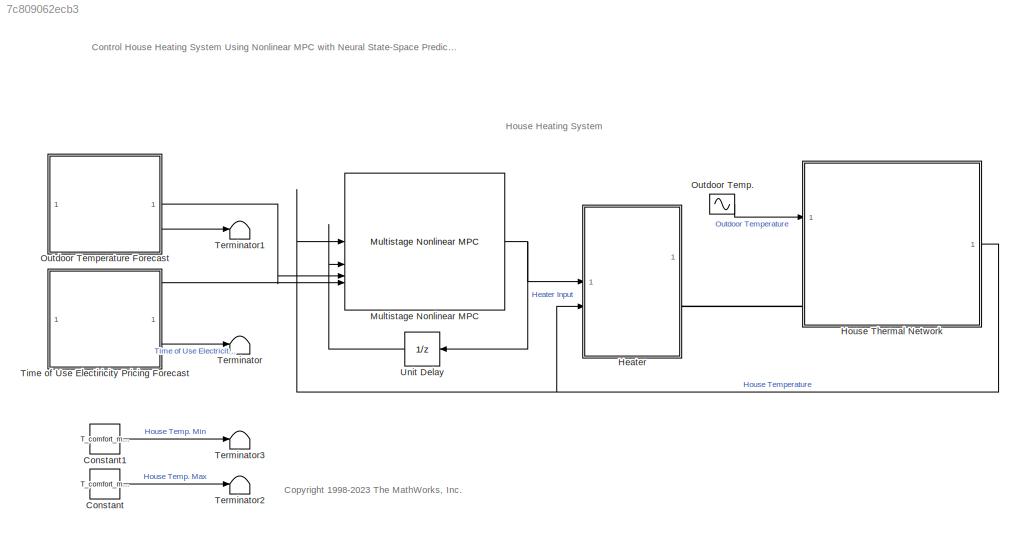
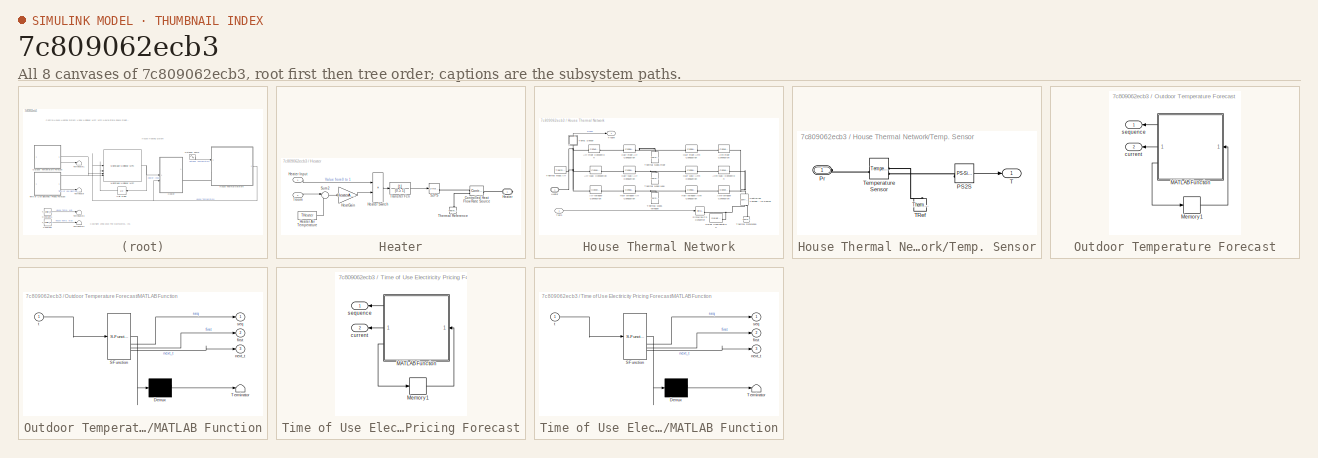
[diagram: thumbnail index - all 8 canvases of the model, root first then tree order]
MODEL slx_7c809062ecb3
KIND model
CONFIG AbsTol = 1e-3
CONFIG EnableMultiTasking = off
CONFIG FixedStep = 500
CONFIG InitFcn = %   Simscape Demo "House Heating System"\nmax_temp = 23;    % Maximum temperature\nmin_temp = 18;     % Minimum temperature\n% Walls\n% House length = 30 m\nlenHouse = 30;\n% House width = 10 m\nwidHouse = 10;\n% House height = 4 m\nhtHouse = 4;\nwallArea = 2*lenHouse*htHouse + 2*widHouse*htHouse;\nLWall = .2;\nwallVolume = wallArea * LWall;\nwallDensity = 1920;     % kg/m^3\nwallMass = wallVolume * wallDensity...<+1997ch>
CONFIG MaxStep = 50
CONFIG MinStep = auto
CONFIG RelTol = 1e-3
CONFIG SampleTimeConstraint = Unconstrained
CONFIG SolverName = VariableStepAuto
CONFIG StartTime = 0.0
CONFIG StopTime = 3600*24
BLOCK [Constant] Constant
  Value = T_comfort_min
BLOCK [Constant] Constant1
  Value = T_comfort_max
BLOCK [SubSystem] Heater
BLOCK [Reference] Heater/Controlled Heat Flow Rate Source  REF=fl_lib/Thermal/Thermal Sources/Controlled Heat Flow
Rate Source
  SourceBlock = fl_lib/Thermal/Thermal Sources/Controlled Heat Flow\nRate Source
  SourceType = Controlled Heat Flow\nRate Source
BLOCK [Gain] Heater/HeatGain
  Gain = HeaterAirFlow * c_air
BLOCK [PMIOPort] Heater/Heater
  Side = Right
  Tag = PMCPort
BLOCK [Constant] Heater/Heater Air Temperature
  Value = THeater
BLOCK [Inport] Heater/Heater Input
BLOCK [Product] Heater/Heater Switch
  RndMeth = Zero
BLOCK [Reference] Heater/S2PS  REF=nesl_utility/Simulink-PS
Converter
  SourceBlock = nesl_utility/Simulink-PS\nConverter
  SourceType = Simulink-PS\nConverter
BLOCK [Sum] Heater/Sum2
  Inputs = |-+
BLOCK [Reference] Heater/Thermal Reference  REF=fl_lib/Thermal/Thermal Elements/Thermal Reference
  NameLocation = right
  SourceBlock = fl_lib/Thermal/Thermal Elements/Thermal Reference
  SourceType = Thermal Reference
BLOCK [TransferFcn] Heater/Transfer Fcn
  Denominator = [0.5 1]
BLOCK [Inport] Heater/Troom
  Port = 2
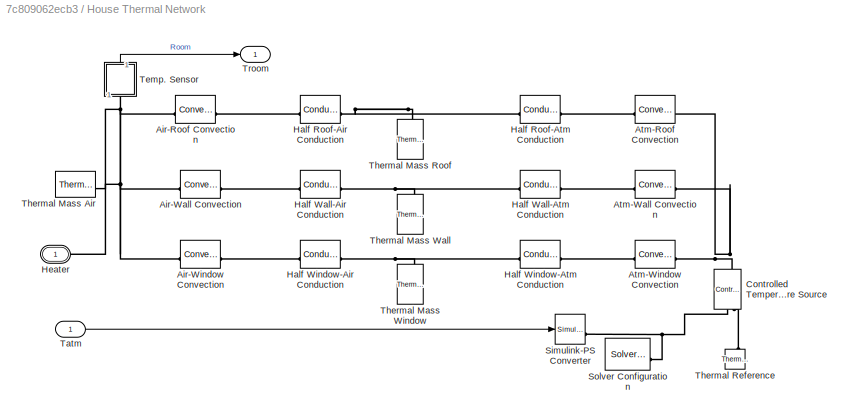
BLOCK [SubSystem] House Thermal Network
  Tag = PublishSubsystem
BLOCK [Reference] House Thermal Network/Air-Roof Convection  REF=fl_lib/Thermal/Thermal Elements/Convective Heat
Transfer
  SourceBlock = fl_lib/Thermal/Thermal Elements/Convective Heat\nTransfer
  SourceType = Convective Heat\nTransfer
BLOCK [Reference] House Thermal Network/Air-Wall Convection  REF=fl_lib/Thermal/Thermal Elements/Convective Heat
Transfer
  SourceBlock = fl_lib/Thermal/Thermal Elements/Convective Heat\nTransfer
  SourceType = Convective Heat\nTransfer
BLOCK [Reference] House Thermal Network/Air-Window Convection  REF=fl_lib/Thermal/Thermal Elements/Convective Heat
Transfer
  SourceBlock = fl_lib/Thermal/Thermal Elements/Convective Heat\nTransfer
  SourceType = Convective Heat\nTransfer
BLOCK [Reference] House Thermal Network/Atm-Roof Convection  REF=fl_lib/Thermal/Thermal Elements/Convective Heat
Transfer
  SourceBlock = fl_lib/Thermal/Thermal Elements/Convective Heat\nTransfer
  SourceType = Convective Heat\nTransfer
BLOCK [Reference] House Thermal Network/Atm-Wall Convection  REF=fl_lib/Thermal/Thermal Elements/Convective Heat
Transfer
  SourceBlock = fl_lib/Thermal/Thermal Elements/Convective Heat\nTransfer
  SourceType = Convective Heat\nTransfer
BLOCK [Reference] House Thermal Network/Atm-Window Convection  REF=fl_lib/Thermal/Thermal Elements/Convective Heat
Transfer
  SourceBlock = fl_lib/Thermal/Thermal Elements/Convective Heat\nTransfer
  SourceType = Convective Heat\nTransfer
BLOCK [Reference] House Thermal Network/Controlled Temperature Source  REF=fl_lib/Thermal/Thermal Sources/Controlled
Temperature Source
  NameLocation = right
  SourceBlock = fl_lib/Thermal/Thermal Sources/Controlled\nTemperature Source
  SourceType = Controlled\nTemperature Source
BLOCK [Reference] House Thermal Network/Half Roof-Air Conduction  REF=fl_lib/Thermal/Thermal Elements/Conductive Heat
Transfer
  SourceBlock = fl_lib/Thermal/Thermal Elements/Conductive Heat\nTransfer
  SourceType = Conductive Heat\nTransfer
BLOCK [Reference] House Thermal Network/Half Roof-Atm Conduction  REF=fl_lib/Thermal/Thermal Elements/Conductive Heat
Transfer
  SourceBlock = fl_lib/Thermal/Thermal Elements/Conductive Heat\nTransfer
  SourceType = Conductive Heat\nTransfer
BLOCK [Reference] House Thermal Network/Half Wall-Air Conduction  REF=fl_lib/Thermal/Thermal Elements/Conductive Heat
Transfer
  SourceBlock = fl_lib/Thermal/Thermal Elements/Conductive Heat\nTransfer
  SourceType = Conductive Heat\nTransfer
BLOCK [Reference] House Thermal Network/Half Wall-Atm Conduction  REF=fl_lib/Thermal/Thermal Elements/Conductive Heat
Transfer
  SourceBlock = fl_lib/Thermal/Thermal Elements/Conductive Heat\nTransfer
  SourceType = Conductive Heat\nTransfer
BLOCK [Reference] House Thermal Network/Half Window-Air Conduction  REF=fl_lib/Thermal/Thermal Elements/Conductive Heat
Transfer
  SourceBlock = fl_lib/Thermal/Thermal Elements/Conductive Heat\nTransfer
  SourceType = Conductive Heat\nTransfer
BLOCK [Reference] House Thermal Network/Half Window-Atm Conduction  REF=fl_lib/Thermal/Thermal Elements/Conductive Heat
Transfer
  SourceBlock = fl_lib/Thermal/Thermal Elements/Conductive Heat\nTransfer
  SourceType = Conductive Heat\nTransfer
BLOCK [PMIOPort] House Thermal Network/Heater
  Side = Left
  Tag = PMCPort
BLOCK [Reference] House Thermal Network/Simulink-PS Converter  REF=nesl_utility/Simulink-PS
Converter
  SourceBlock = nesl_utility/Simulink-PS\nConverter
  SourceType = Simulink-PS\nConverter
BLOCK [Reference] House Thermal Network/Solver Configuration  REF=nesl_utility/Solver
Configuration
  SourceBlock = nesl_utility/Solver\nConfiguration
  SourceType = Solver\nConfiguration
BLOCK [Inport] House Thermal Network/Tatm
BLOCK [SubSystem] House Thermal Network/Temp. Sensor
  NameLocation = right
BLOCK [Reference] House Thermal Network/Temp. Sensor/PS2S  REF=nesl_utility/PS-Simulink
Converter
  SourceBlock = nesl_utility/PS-Simulink\nConverter
  SourceType = PS-Simulink\nConverter
BLOCK [PMIOPort] House Thermal Network/Temp. Sensor/Pr
  Side = Left
BLOCK [Outport] House Thermal Network/Temp. Sensor/T
  VectorParamsAs1DForOutWhenUnconnected = off
BLOCK [Reference] House Thermal Network/Temp. Sensor/TRef  REF=fl_lib/Thermal/Thermal Elements/Thermal Reference
  NameLocation = right
  SourceBlock = fl_lib/Thermal/Thermal Elements/Thermal Reference
  SourceType = Thermal Reference
BLOCK [Reference] House Thermal Network/Temp. Sensor/Temperature Sensor  REF=fl_lib/Thermal/Thermal Sensors/Temperature Sensor
  SourceBlock = fl_lib/Thermal/Thermal Sensors/Temperature Sensor
  SourceType = Temperature Sensor
BLOCK [Reference] House Thermal Network/Thermal Mass Air  REF=fl_lib/Thermal/Thermal Elements/Thermal Mass
  NameLocation = top
  SourceBlock = fl_lib/Thermal/Thermal Elements/Thermal Mass
  SourceType = Thermal Mass
BLOCK [Reference] House Thermal Network/Thermal Mass Roof  REF=fl_lib/Thermal/Thermal Elements/Thermal Mass
  NameLocation = right
  SourceBlock = fl_lib/Thermal/Thermal Elements/Thermal Mass
  SourceType = Thermal Mass
BLOCK [Reference] House Thermal Network/Thermal Mass Wall  REF=fl_lib/Thermal/Thermal Elements/Thermal Mass
  NameLocation = right
  SourceBlock = fl_lib/Thermal/Thermal Elements/Thermal Mass
  SourceType = Thermal Mass
BLOCK [Reference] House Thermal Network/Thermal Mass Window  REF=fl_lib/Thermal/Thermal Elements/Thermal Mass
  NameLocation = right
  SourceBlock = fl_lib/Thermal/Thermal Elements/Thermal Mass
  SourceType = Thermal Mass
BLOCK [Reference] House Thermal Network/Thermal Reference  REF=fl_lib/Thermal/Thermal Elements/Thermal Reference
  NameLocation = right
  SourceBlock = fl_lib/Thermal/Thermal Elements/Thermal Reference
  SourceType = Thermal Reference
BLOCK [Outport] House Thermal Network/Troom
  VectorParamsAs1DForOutWhenUnconnected = off
BLOCK [Reference] Multistage Nonlinear MPC  REF=mpclib/Multistage Nonlinear MPC  (lib defined in mdl_ae329e0e0455)
  SourceBlock = mpclib/Multistage Nonlinear MPC
  SourceType = NonlinearMPCMultistage
BLOCK [Sin] Outdoor Temp.
  Amplitude = sineAmplitude
  Bias = sineBias
  Frequency = sineFreq
  Phase = sinePhase
  SampleTime = 0
BLOCK [SubSystem] Outdoor Temperature Forecast
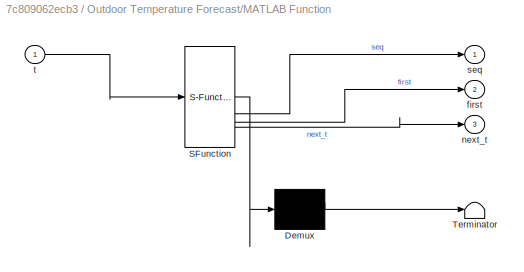
BLOCK [SubSystem] Outdoor Temperature Forecast/MATLAB Function
  ErrorFcn = Stateflow.Translate.translate
  PermitHierarchicalResolution = ExplicitOnly
  SFBlockType = MATLAB Function
  TreatAsAtomicUnit = on
BLOCK [Demux] Outdoor Temperature Forecast/MATLAB Function/ Demux 
  Outputs = 1
BLOCK [S-Function] Outdoor Temperature Forecast/MATLAB Function/ SFunction 
  EnableBusSupport = on
  FunctionName = sf_sfun
  Parameters = data,steps
  PortCounts = [1 4]
  SFcnIsStateOwnerBlock = off
  SFunctionDeploymentMode = off
  Tag = Stateflow S-Function 1
BLOCK [Terminator] Outdoor Temperature Forecast/MATLAB Function/ Terminator 
BLOCK [Outport] Outdoor Temperature Forecast/MATLAB Function/first
  Port = 2
  VectorParamsAs1DForOutWhenUnconnected = off
BLOCK [Outport] Outdoor Temperature Forecast/MATLAB Function/next_t
  Port = 3
  VectorParamsAs1DForOutWhenUnconnected = off
BLOCK [Outport] Outdoor Temperature Forecast/MATLAB Function/seq
  VectorParamsAs1DForOutWhenUnconnected = off
BLOCK [Inport] Outdoor Temperature Forecast/MATLAB Function/t
BLOCK [Memory] Outdoor Temperature Forecast/Memory1
  InheritSampleTime = on
  LinearizeAsDelay = on
BLOCK [Outport] Outdoor Temperature Forecast/current
  Port = 2
  VectorParamsAs1DForOutWhenUnconnected = off
BLOCK [Outport] Outdoor Temperature Forecast/sequence
  VectorParamsAs1DForOutWhenUnconnected = off
BLOCK [Terminator] Terminator
BLOCK [Terminator] Terminator1
BLOCK [Terminator] Terminator2
BLOCK [Terminator] Terminator3
BLOCK [SubSystem] Time of Use Electiricity Pricing Forecast
BLOCK [SubSystem] Time of Use Electiricity Pricing Forecast/MATLAB Function
  ErrorFcn = Stateflow.Translate.translate
  PermitHierarchicalResolution = ExplicitOnly
  SFBlockType = MATLAB Function
  TreatAsAtomicUnit = on
BLOCK [Demux] Time of Use Electiricity Pricing Forecast/MATLAB Function/ Demux 
  Outputs = 1
BLOCK [S-Function] Time of Use Electiricity Pricing Forecast/MATLAB Function/ SFunction 
  EnableBusSupport = on
  FunctionName = sf_sfun
  Parameters = data,steps
  PortCounts = [1 4]
  SFcnIsStateOwnerBlock = off
  SFunctionDeploymentMode = off
  Tag = Stateflow S-Function 2
BLOCK [Terminator] Time of Use Electiricity Pricing Forecast/MATLAB Function/ Terminator 
BLOCK [Outport] Time of Use Electiricity Pricing Forecast/MATLAB Function/first
  Port = 2
  VectorParamsAs1DForOutWhenUnconnected = off
BLOCK [Outport] Time of Use Electiricity Pricing Forecast/MATLAB Function/next_t
  Port = 3
  VectorParamsAs1DForOutWhenUnconnected = off
BLOCK [Outport] Time of Use Electiricity Pricing Forecast/MATLAB Function/seq
  VectorParamsAs1DForOutWhenUnconnected = off
BLOCK [Inport] Time of Use Electiricity Pricing Forecast/MATLAB Function/t
BLOCK [Memory] Time of Use Electiricity Pricing Forecast/Memory1
  InheritSampleTime = on
  LinearizeAsDelay = on
BLOCK [Outport] Time of Use Electiricity Pricing Forecast/current
  Port = 2
  VectorParamsAs1DForOutWhenUnconnected = off
BLOCK [Outport] Time of Use Electiricity Pricing Forecast/sequence
  VectorParamsAs1DForOutWhenUnconnected = off
BLOCK [UnitDelay] Unit Delay
  HasFrameUpgradeWarning = on
  SampleTime = -1
ANNOTATION (root): Control House Heating System Using Nonlinear MPC with Neural State-Space Prediction Model
ANNOTATION (root): <copyright redacted>
ANNOTATION (root): House Heating System
LINE Constant1:1 -> Terminator3:1
LINE Constant:1 -> Terminator2:1
LINE Heater/HeatGain:1 -> Heater/Heater Switch:2
LINE Heater/Heater Air Temperature:1 -> Heater/Sum2:2
LINE Heater/Heater Input:1 -> Heater/Heater Switch:1
LINE Heater/Heater Switch:1 -> Heater/Transfer Fcn:1
LINE Heater/Sum2:1 -> Heater/HeatGain:1
LINE Heater/Transfer Fcn:1 -> Heater/S2PS:1
LINE Heater/Troom:1 -> Heater/Sum2:1
LINE House Thermal Network/Tatm:1 -> House Thermal Network/Simulink-PS Converter:1
LINE House Thermal Network/Temp. Sensor/PS2S:1 -> House Thermal Network/Temp. Sensor/T:1
LINE House Thermal Network/Temp. Sensor:1 -> House Thermal Network/Troom:1
NET House Thermal Network:1 -> Heater:2, Multistage Nonlinear MPC:1
NET Multistage Nonlinear MPC:1 -> Heater:1, Unit Delay:1
LINE Outdoor Temp.:1 -> House Thermal Network:1
LINE Outdoor Temperature Forecast/MATLAB Function:1 -> Outdoor Temperature Forecast/sequence:1
LINE Outdoor Temperature Forecast/MATLAB Function:2 -> Outdoor Temperature Forecast/current:1
LINE Outdoor Temperature Forecast/MATLAB Function:3 -> Outdoor Temperature Forecast/Memory1:1
LINE Outdoor Temperature Forecast/Memory1:1 -> Outdoor Temperature Forecast/MATLAB Function:1
LINE Outdoor Temperature Forecast:1 -> Multistage Nonlinear MPC:3
LINE Outdoor Temperature Forecast:2 -> Terminator1:1
LINE Time of Use Electiricity Pricing Forecast/MATLAB Function:1 -> Time of Use Electiricity Pricing Forecast/sequence:1
LINE Time of Use Electiricity Pricing Forecast/MATLAB Function:2 -> Time of Use Electiricity Pricing Forecast/current:1
LINE Time of Use Electiricity Pricing Forecast/MATLAB Function:3 -> Time of Use Electiricity Pricing Forecast/Memory1:1
LINE Time of Use Electiricity Pricing Forecast/Memory1:1 -> Time of Use Electiricity Pricing Forecast/MATLAB Function:1
LINE Time of Use Electiricity Pricing Forecast:1 -> Multistage Nonlinear MPC:4
LINE Time of Use Electiricity Pricing Forecast:2 -> Terminator:1
LINE Unit Delay:1 -> Multistage Nonlinear MPC:2
PLINE Heater/Controlled Heat Flow Rate Source:LConn1 -- Heater/Heater:RConn1
PLINE Heater/Controlled Heat Flow Rate Source:RConn1 -- Heater/S2PS:RConn1
PLINE Heater/Controlled Heat Flow Rate Source:RConn2 -- Heater/Thermal Reference:LConn1
PLINE Heater:RConn1 -- House Thermal Network:LConn1
PNET net1: House Thermal Network/Air-Roof Convection:LConn1 -- House Thermal Network/Air-Wall Convection:LConn1 -- House Thermal Network/Air-Window Convection:LConn1 -- House Thermal Network/Heater:RConn1 -- House Thermal Network/Temp. Sensor:LConn1 -- House Thermal Network/Thermal Mass Air:LConn1
PLINE House Thermal Network/Air-Roof Convection:RConn1 -- House Thermal Network/Half Roof-Air Conduction:LConn1
PLINE House Thermal Network/Air-Wall Convection:RConn1 -- House Thermal Network/Half Wall-Air Conduction:LConn1
PLINE House Thermal Network/Air-Window Convection:RConn1 -- House Thermal Network/Half Window-Air Conduction:LConn1
PLINE House Thermal Network/Atm-Roof Convection:LConn1 -- House Thermal Network/Half Roof-Atm Conduction:RConn1
PNET net2: House Thermal Network/Atm-Roof Convection:RConn1 -- House Thermal Network/Atm-Wall Convection:RConn1 -- House Thermal Network/Atm-Window Convection:RConn1 -- House Thermal Network/Controlled Temperature Source:LConn1
PLINE House Thermal Network/Atm-Wall Convection:LConn1 -- House Thermal Network/Half Wall-Atm Conduction:RConn1
PLINE House Thermal Network/Atm-Window Convection:LConn1 -- House Thermal Network/Half Window-Atm Conduction:RConn1
PNET net3: House Thermal Network/Controlled Temperature Source:RConn1 -- House Thermal Network/Simulink-PS Converter:RConn1 -- House Thermal Network/Solver Configuration:RConn1
PLINE House Thermal Network/Controlled Temperature Source:RConn2 -- House Thermal Network/Thermal Reference:LConn1
PNET net4: House Thermal Network/Half Roof-Air Conduction:RConn1 -- House Thermal Network/Half Roof-Atm Conduction:LConn1 -- House Thermal Network/Thermal Mass Roof:LConn1
PNET net5: House Thermal Network/Half Wall-Air Conduction:RConn1 -- House Thermal Network/Half Wall-Atm Conduction:LConn1 -- House Thermal Network/Thermal Mass Wall:LConn1
PNET net6: House Thermal Network/Half Window-Air Conduction:RConn1 -- House Thermal Network/Half Window-Atm Conduction:LConn1 -- House Thermal Network/Thermal Mass Window:LConn1
PLINE House Thermal Network/Temp. Sensor/PS2S:LConn1 -- House Thermal Network/Temp. Sensor/Temperature Sensor:RConn2
PLINE House Thermal Network/Temp. Sensor/Pr:RConn1 -- House Thermal Network/Temp. Sensor/Temperature Sensor:LConn1
PLINE House Thermal Network/Temp. Sensor/TRef:LConn1 -- House Thermal Network/Temp. Sensor/Temperature Sensor:RConn1
note: NET lines group one-source signal fan-out (src -> all destinations, sorted); 1:1 wires keep LINE; PNET lines group multi-terminal physical nets as a canonical sorted terminal list (undirected conserving connections); 2-terminal nets keep the pairwise PLINE form
CHART Outdoor Temperature Forecast/MATLAB Function states=1 transitions=1
  STATE_LABEL 'eML_blk_kernel()'
  STATE_LABEL "SCRIPT:\nfunction [seq,first,next_t] = fcn(data,steps,t)\n%#codegen\n[seq,first,next_t] = mpcblock_preview('md',data,steps,t);"
CHART Time of Use Electiricity 
Pricing Forecast/MATLAB Function states=1 transitions=1
  STATE_LABEL 'eML_blk_kernel()'
  STATE_LABEL "SCRIPT:\nfunction [seq,first,next_t] = fcn(data,steps,t)\n%#codegen\n[seq,first,next_t] = mpcblock_preview('md',data,steps,t);"
CHART  states=0 transitions=0
CHART  states=0 transitions=0
